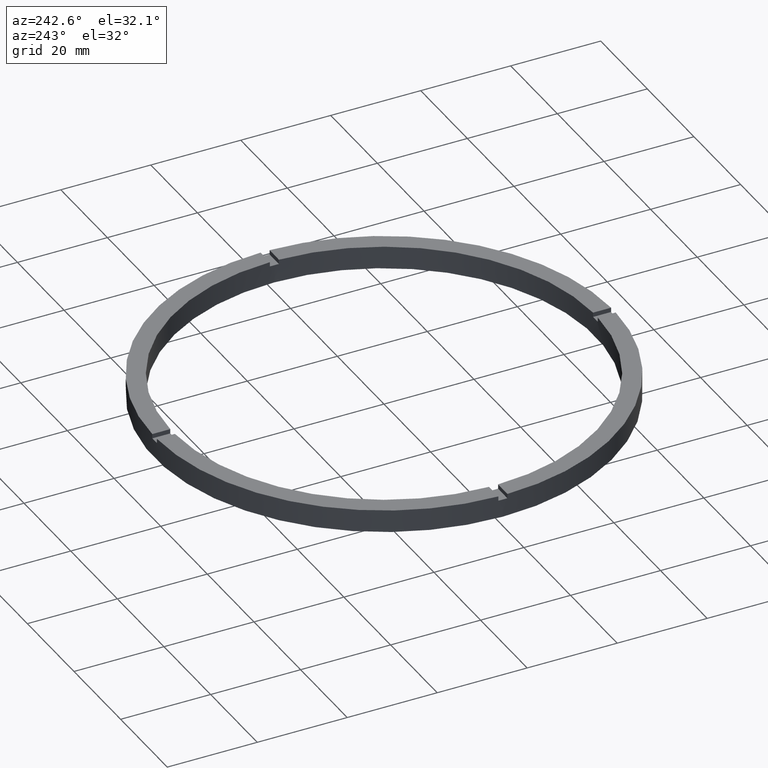
[diagram: clean part render]
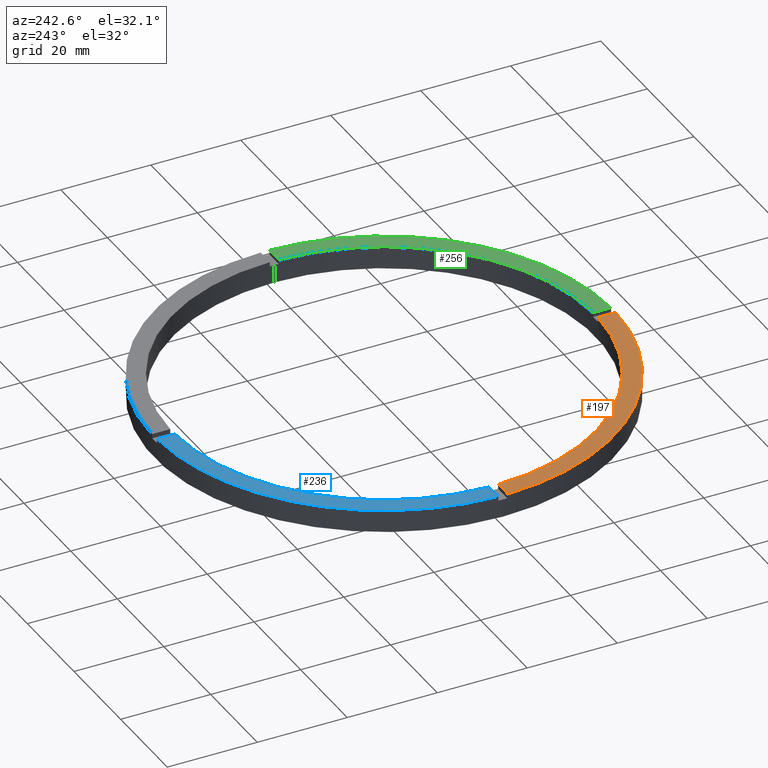
[diagram: same view with three faces highlighted in distinct colors, each labeled with its STEP entity id]
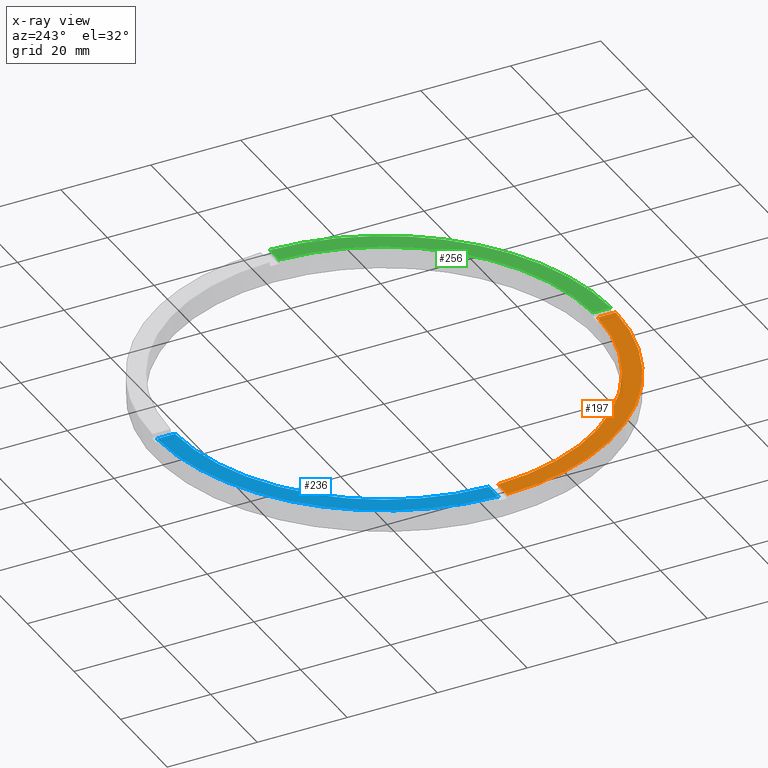
[diagram: x-ray of the same camera — body ghosted, the three highlighted faces saturated]
A machine part, auxiliary view with three faces highlighted in distinct colors.
The next image is the same camera in x-ray (body ghosted, the three faces saturated) — at least one of them is partly hidden behind the body in this view.
Their STEP definitions:

[orange] entity #197 — the highlighted planar face has unit normal (0, 0, 1).
#17 = DIRECTION ( 'NONE',  ( 0.000000000000000000, 0.000000000000000000, 1.000000000000000000 ) ) ;
#25 = DIRECTION ( 'NONE',  ( 1.000000000000000000, 0.000000000000000000, -0.000000000000000000 ) ) ;
#26 = AXIS2_PLACEMENT_3D ( 'NONE', #166, #512, #633 ) ;
#44 = CIRCLE ( 'NONE', #26, 47.00000000000000711 ) ;
#86 = EDGE_CURVE ( 'NONE', #509, #464, #44, .T. ) ;
#115 = DIRECTION ( 'NONE',  ( 1.301042606982605074E-16, -1.000000000000000000, 0.000000000000000000 ) ) ;
#131 = ORIENTED_EDGE ( 'NONE', *, *, #760, .F. ) ;
#137 = AXIS2_PLACEMENT_3D ( 'NONE', #461, #705, #266 ) ;
#166 = CARTESIAN_POINT ( 'NONE',  ( 0.000000000000000000, 0.000000000000000000, 5.000000000000000000 ) ) ;
#197 = ADVANCED_FACE ( 'NONE', ( #337 ), #412, .T. ) ;
#240 = EDGE_CURVE ( 'NONE', #752, #389, #591, .T. ) ;
#248 = CARTESIAN_POINT ( 'NONE',  ( -46.98936049788292024, -1.000000000000030864, 5.000000000000000000 ) ) ;
#266 = DIRECTION ( 'NONE',  ( 1.000000000000000000, 0.000000000000000000, 0.000000000000000000 ) ) ;
#276 = ORIENTED_EDGE ( 'NONE', *, *, #240, .T. ) ;
#282 = EDGE_CURVE ( 'NONE', #464, #389, #336, .T. ) ;
#283 = ORIENTED_EDGE ( 'NONE', *, *, #86, .F. ) ;
#332 = CARTESIAN_POINT ( 'NONE',  ( -41.00000000000018474, -1.000000000000029754, 5.000000000000000000 ) ) ;
#336 = LINE ( 'NONE', #348, #351 ) ;
#337 = FACE_OUTER_BOUND ( 'NONE', #542, .T. ) ;
#348 = CARTESIAN_POINT ( 'NONE',  ( -1.000000000000157874, -41.00000000000017764, 5.000000000000000000 ) ) ;
#351 = VECTOR ( 'NONE', #115, 1000.000000000000000 ) ;
#389 = VERTEX_POINT ( 'NONE', #729 ) ;
#412 = PLANE ( 'NONE',  #450 ) ;
#450 = AXIS2_PLACEMENT_3D ( 'NONE', #755, #17, #25 ) ;
#461 = CARTESIAN_POINT ( 'NONE',  ( 0.000000000000000000, 0.000000000000000000, 5.000000000000000000 ) ) ;
#464 = VERTEX_POINT ( 'NONE', #772 ) ;
#473 = CARTESIAN_POINT ( 'NONE',  ( -50.99019513592784136, -1.000000000000031752, 5.000000000000000000 ) ) ;
#509 = VERTEX_POINT ( 'NONE', #248 ) ;
#512 = DIRECTION ( 'NONE',  ( 0.000000000000000000, 0.000000000000000000, 1.000000000000000000 ) ) ;
#542 = EDGE_LOOP ( 'NONE', ( #543, #283, #131, #276 ) ) ;
#543 = ORIENTED_EDGE ( 'NONE', *, *, #282, .F. ) ;
#591 = CIRCLE ( 'NONE', #137, 51.00000000000000000 ) ;
#625 = VECTOR ( 'NONE', #658, 1000.000000000000000 ) ;
#631 = LINE ( 'NONE', #332, #625 ) ;
#633 = DIRECTION ( 'NONE',  ( 1.000000000000000000, 0.000000000000000000, 0.000000000000000000 ) ) ;
#658 = DIRECTION ( 'NONE',  ( 1.000000000000000000, 1.951563910473907735E-16, -0.000000000000000000 ) ) ;
#705 = DIRECTION ( 'NONE',  ( 0.000000000000000000, 0.000000000000000000, 1.000000000000000000 ) ) ;
#729 = CARTESIAN_POINT ( 'NONE',  ( -1.000000000000156541, -50.99019513592784136, 5.000000000000000000 ) ) ;
#752 = VERTEX_POINT ( 'NONE', #473 ) ;
#755 = CARTESIAN_POINT ( 'NONE',  ( 0.000000000000000000, 0.000000000000000000, 5.000000000000000000 ) ) ;
#760 = EDGE_CURVE ( 'NONE', #752, #509, #631, .T. ) ;
#772 = CARTESIAN_POINT ( 'NONE',  ( -1.000000000000157208, -46.98936049788292024, 5.000000000000000000 ) ) ;

[blue] entity #236 — the highlighted planar face has unit normal (0, 0, 1).
#12 = ORIENTED_EDGE ( 'NONE', *, *, #235, .F. ) ;
#73 = LINE ( 'NONE', #341, #88 ) ;
#88 = VECTOR ( 'NONE', #580, 1000.000000000000000 ) ;
#93 = DIRECTION ( 'NONE',  ( 0.000000000000000000, 0.000000000000000000, 1.000000000000000000 ) ) ;
#99 = LINE ( 'NONE', #169, #640 ) ;
#125 = CIRCLE ( 'NONE', #237, 51.00000000000000000 ) ;
#145 = DIRECTION ( 'NONE',  ( 0.000000000000000000, 0.000000000000000000, 1.000000000000000000 ) ) ;
#160 = ORIENTED_EDGE ( 'NONE', *, *, #210, .F. ) ;
#169 = CARTESIAN_POINT ( 'NONE',  ( -41.00000000000018474, 0.9999999999999703570, 5.000000000000000000 ) ) ;
#183 = CARTESIAN_POINT ( 'NONE',  ( -1.000000000000026867, 46.98936049788292024, 5.000000000000000000 ) ) ;
#184 = DIRECTION ( 'NONE',  ( 1.000000000000000000, 0.000000000000000000, 0.000000000000000000 ) ) ;
#199 = AXIS2_PLACEMENT_3D ( 'NONE', #701, #744, #402 ) ;
#205 = ORIENTED_EDGE ( 'NONE', *, *, #552, .T. ) ;
#210 = EDGE_CURVE ( 'NONE', #396, #664, #601, .T. ) ;
#235 = EDGE_CURVE ( 'NONE', #246, #396, #73, .T. ) ;
#236 = ADVANCED_FACE ( 'NONE', ( #349 ), #649, .T. ) ;
#237 = AXIS2_PLACEMENT_3D ( 'NONE', #594, #145, #771 ) ;
#246 = VERTEX_POINT ( 'NONE', #719 ) ;
#313 = CARTESIAN_POINT ( 'NONE',  ( -46.98936049788292024, 0.9999999999999692468, 5.000000000000000000 ) ) ;
#341 = CARTESIAN_POINT ( 'NONE',  ( -1.000000000000026867, 40.99999999999999289, 5.000000000000000000 ) ) ;
#349 = FACE_OUTER_BOUND ( 'NONE', #763, .T. ) ;
#396 = VERTEX_POINT ( 'NONE', #183 ) ;
#402 = DIRECTION ( 'NONE',  ( 1.000000000000000000, 0.000000000000000000, -0.000000000000000000 ) ) ;
#448 = CARTESIAN_POINT ( 'NONE',  ( -50.99019513592784136, 0.9999999999999683586, 5.000000000000000000 ) ) ;
#501 = VERTEX_POINT ( 'NONE', #448 ) ;
#552 = EDGE_CURVE ( 'NONE', #246, #501, #125, .T. ) ;
#571 = AXIS2_PLACEMENT_3D ( 'NONE', #713, #93, #184 ) ;
#580 = DIRECTION ( 'NONE',  ( -0.000000000000000000, -1.000000000000000000, -0.000000000000000000 ) ) ;
#594 = CARTESIAN_POINT ( 'NONE',  ( 0.000000000000000000, 0.000000000000000000, 5.000000000000000000 ) ) ;
#601 = CIRCLE ( 'NONE', #571, 47.00000000000000711 ) ;
#616 = DIRECTION ( 'NONE',  ( -1.000000000000000000, -1.951563910473907735E-16, 0.000000000000000000 ) ) ;
#622 = EDGE_CURVE ( 'NONE', #664, #501, #99, .T. ) ;
#640 = VECTOR ( 'NONE', #616, 1000.000000000000000 ) ;
#649 = PLANE ( 'NONE',  #199 ) ;
#653 = ORIENTED_EDGE ( 'NONE', *, *, #622, .F. ) ;
#664 = VERTEX_POINT ( 'NONE', #313 ) ;
#701 = CARTESIAN_POINT ( 'NONE',  ( 0.000000000000000000, 0.000000000000000000, 5.000000000000000000 ) ) ;
#713 = CARTESIAN_POINT ( 'NONE',  ( 0.000000000000000000, 0.000000000000000000, 5.000000000000000000 ) ) ;
#719 = CARTESIAN_POINT ( 'NONE',  ( -1.000000000000026867, 50.99019513592784136, 5.000000000000000000 ) ) ;
#744 = DIRECTION ( 'NONE',  ( 0.000000000000000000, 0.000000000000000000, 1.000000000000000000 ) ) ;
#763 = EDGE_LOOP ( 'NONE', ( #12, #205, #653, #160 ) ) ;
#771 = DIRECTION ( 'NONE',  ( 1.000000000000000000, 0.000000000000000000, 0.000000000000000000 ) ) ;

[green] entity #256 — the highlighted planar face has unit normal (0, 0, 1).
#13 = VERTEX_POINT ( 'NONE', #441 ) ;
#18 = VERTEX_POINT ( 'NONE', #770 ) ;
#22 = EDGE_LOOP ( 'NONE', ( #679, #639, #382, #766 ) ) ;
#54 = CARTESIAN_POINT ( 'NONE',  ( 0.000000000000000000, 0.000000000000000000, 5.000000000000000000 ) ) ;
#58 = LINE ( 'NONE', #575, #76 ) ;
#64 = CIRCLE ( 'NONE', #557, 47.00000000000000711 ) ;
#76 = VECTOR ( 'NONE', #219, 1000.000000000000000 ) ;
#94 = LINE ( 'NONE', #603, #113 ) ;
#113 = VECTOR ( 'NONE', #361, 1000.000000000000000 ) ;
#120 = CARTESIAN_POINT ( 'NONE',  ( 0.000000000000000000, 0.000000000000000000, 5.000000000000000000 ) ) ;
#124 = DIRECTION ( 'NONE',  ( 0.000000000000000000, 0.000000000000000000, 1.000000000000000000 ) ) ;
#213 = EDGE_CURVE ( 'NONE', #436, #18, #58, .T. ) ;
#219 = DIRECTION ( 'NONE',  ( 1.000000000000000000, 6.505213034913025371E-17, 0.000000000000000000 ) ) ;
#230 = CARTESIAN_POINT ( 'NONE',  ( 0.000000000000000000, 0.000000000000000000, 5.000000000000000000 ) ) ;
#234 = PLANE ( 'NONE',  #428 ) ;
#256 = ADVANCED_FACE ( 'NONE', ( #595 ), #234, .T. ) ;
#272 = DIRECTION ( 'NONE',  ( 0.000000000000000000, 0.000000000000000000, 1.000000000000000000 ) ) ;
#300 = CARTESIAN_POINT ( 'NONE',  ( 46.98936049788292024, -1.000000000000155209, 5.000000000000000000 ) ) ;
#340 = DIRECTION ( 'NONE',  ( 0.000000000000000000, 0.000000000000000000, 1.000000000000000000 ) ) ;
#361 = DIRECTION ( 'NONE',  ( -1.301042606982605074E-16, 1.000000000000000000, -0.000000000000000000 ) ) ;
#377 = AXIS2_PLACEMENT_3D ( 'NONE', #54, #124, #731 ) ;
#382 = ORIENTED_EDGE ( 'NONE', *, *, #507, .F. ) ;
#386 = CIRCLE ( 'NONE', #377, 51.00000000000000000 ) ;
#428 = AXIS2_PLACEMENT_3D ( 'NONE', #120, #340, #482 ) ;
#434 = EDGE_CURVE ( 'NONE', #534, #436, #64, .T. ) ;
#436 = VERTEX_POINT ( 'NONE', #300 ) ;
#441 = CARTESIAN_POINT ( 'NONE',  ( 0.9999999999998434586, -50.99019513592784847, 5.000000000000000000 ) ) ;
#482 = DIRECTION ( 'NONE',  ( 1.000000000000000000, 0.000000000000000000, -0.000000000000000000 ) ) ;
#507 = EDGE_CURVE ( 'NONE', #13, #534, #94, .T. ) ;
#522 = DIRECTION ( 'NONE',  ( 1.000000000000000000, 0.000000000000000000, 0.000000000000000000 ) ) ;
#534 = VERTEX_POINT ( 'NONE', #773 ) ;
#557 = AXIS2_PLACEMENT_3D ( 'NONE', #230, #272, #522 ) ;
#575 = CARTESIAN_POINT ( 'NONE',  ( 40.99999999999998579, -1.000000000000155653, 5.000000000000000000 ) ) ;
#583 = EDGE_CURVE ( 'NONE', #13, #18, #386, .T. ) ;
#595 = FACE_OUTER_BOUND ( 'NONE', #22, .T. ) ;
#603 = CARTESIAN_POINT ( 'NONE',  ( 0.9999999999998421263, -41.00000000000017764, 5.000000000000000000 ) ) ;
#639 = ORIENTED_EDGE ( 'NONE', *, *, #434, .F. ) ;
#679 = ORIENTED_EDGE ( 'NONE', *, *, #213, .F. ) ;
#731 = DIRECTION ( 'NONE',  ( 1.000000000000000000, 0.000000000000000000, 0.000000000000000000 ) ) ;
#766 = ORIENTED_EDGE ( 'NONE', *, *, #583, .T. ) ;
#770 = CARTESIAN_POINT ( 'NONE',  ( 50.99019513592784136, -1.000000000000154987, 5.000000000000000000 ) ) ;
#773 = CARTESIAN_POINT ( 'NONE',  ( 0.9999999999998427924, -46.98936049788292735, 5.000000000000000000 ) ) ;